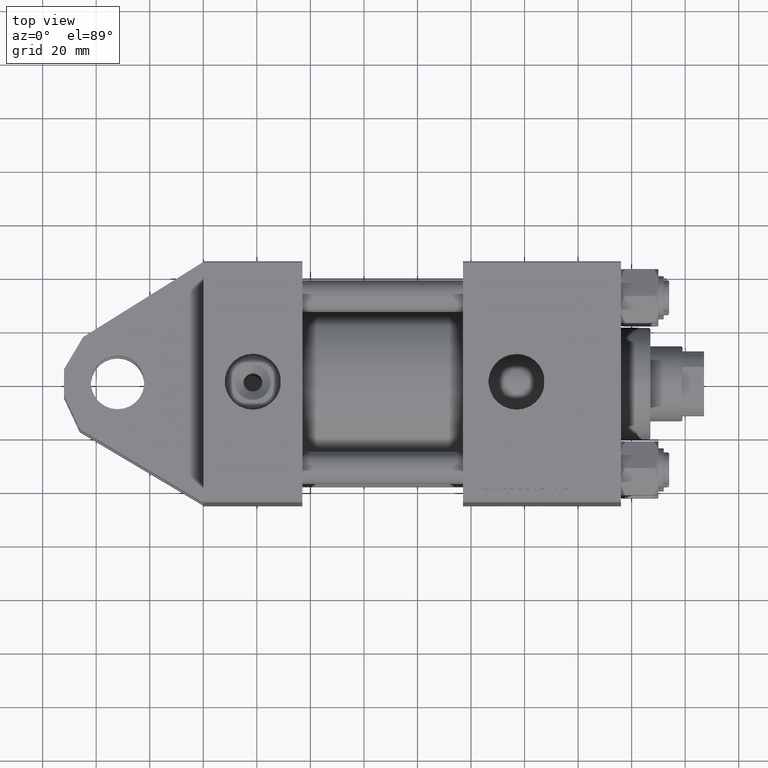
[diagram: clean part render]
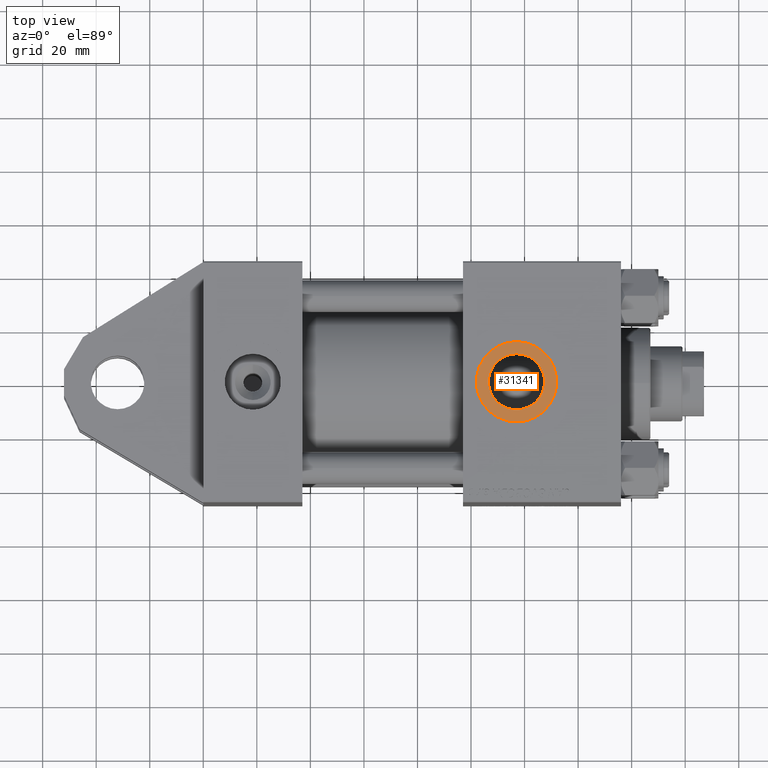
[diagram: same view with one face highlighted and labeled with its STEP entity id]
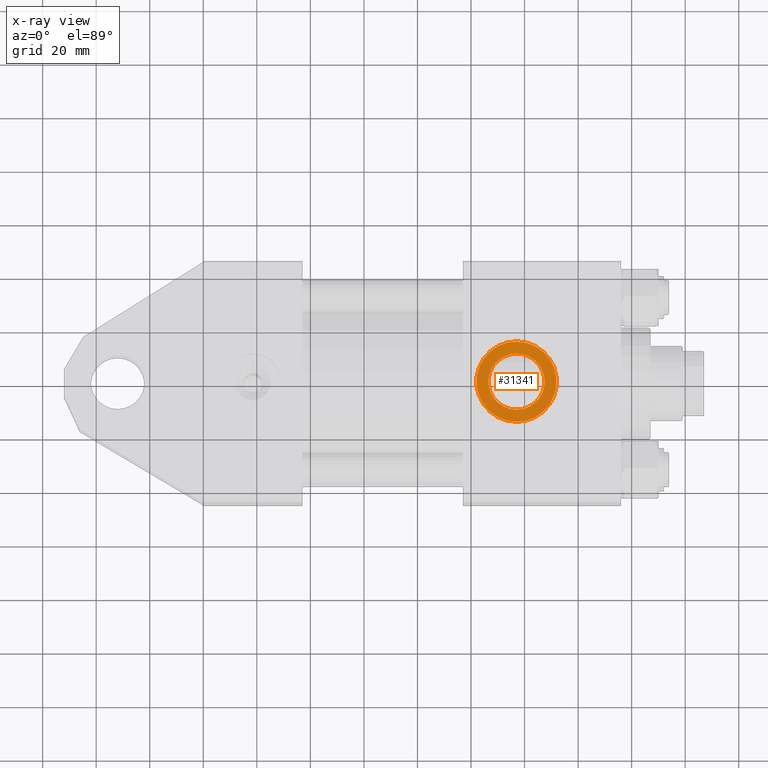
[diagram: x-ray of the same camera — body ghosted, the highlighted face saturated]
A machine part, top view. The second image highlights one B-rep face of the part: STEP entity #31341.
The next image is the same camera in x-ray: the body ghosted, the highlighted face saturated — about 0% of this face is hidden behind the body in this view.
In plain terms, the highlighted planar face has unit normal (0, -0, 1).
Its self-contained STEP definition (entity closure, byte-faithful):
#200 = ORIENTED_EDGE ( 'NONE', *, *, #15135, .T. ) ;
#1299 = FACE_BOUND ( 'NONE', #4038, .T. ) ;
#1415 = CARTESIAN_POINT ( 'NONE',  ( 117.0000000000000000, -44.79999999999999716, 15.00000000000000888 ) ) ;
#3789 = EDGE_CURVE ( 'NONE', #37404, #10490, #28231, .T. ) ;
#4038 = EDGE_LOOP ( 'NONE', ( #47691, #48189 ) ) ;
#5496 = DIRECTION ( 'NONE',  ( 0.000000000000000000, -1.000000000000000000, -8.673617379884036705E-17 ) ) ;
#8646 = PLANE ( 'NONE',  #14290 ) ;
#10490 = VERTEX_POINT ( 'NONE', #21823 ) ;
#11656 = DIRECTION ( 'NONE',  ( 0.000000000000000000, -1.000000000000000000, -8.673617379884036705E-17 ) ) ;
#12323 = CIRCLE ( 'NONE', #30748, 10.48000000000000043 ) ;
#14108 = CARTESIAN_POINT ( 'NONE',  ( 117.0000000000000000, -44.79999999999999716, -10.48000000000000398 ) ) ;
#14290 = AXIS2_PLACEMENT_3D ( 'NONE', #17289, #5496, #33253 ) ;
#15135 = EDGE_CURVE ( 'NONE', #21323, #15483, #22184, .T. ) ;
#15483 = VERTEX_POINT ( 'NONE', #22511 ) ;
#17289 = CARTESIAN_POINT ( 'NONE',  ( 117.0000000000000000, -44.79999999999999716, -3.452099717193846907E-15 ) ) ;
#18121 = DIRECTION ( 'NONE',  ( 0.000000000000000000, 0.000000000000000000, -1.000000000000000000 ) ) ;
#18637 = CARTESIAN_POINT ( 'NONE',  ( 117.0000000000000000, -44.79999999999999716, -3.452099717193846907E-15 ) ) ;
#20337 = EDGE_CURVE ( 'NONE', #10490, #37404, #12323, .T. ) ;
#21323 = VERTEX_POINT ( 'NONE', #1415 ) ;
#21823 = CARTESIAN_POINT ( 'NONE',  ( 117.0000000000000000, -44.79999999999999716, 10.47999999999999687 ) ) ;
#22184 = CIRCLE ( 'NONE', #29699, 15.00000000000001243 ) ;
#22282 = EDGE_LOOP ( 'NONE', ( #43877, #200 ) ) ;
#22511 = CARTESIAN_POINT ( 'NONE',  ( 117.0000000000000000, -44.79999999999999716, -15.00000000000001421 ) ) ;
#25715 = DIRECTION ( 'NONE',  ( 0.000000000000000000, 0.000000000000000000, -1.000000000000000000 ) ) ;
#26482 = DIRECTION ( 'NONE',  ( 0.000000000000000000, -1.000000000000000000, -8.673617379884036705E-17 ) ) ;
#27644 = DIRECTION ( 'NONE',  ( 0.000000000000000000, 0.000000000000000000, -1.000000000000000000 ) ) ;
#28231 = CIRCLE ( 'NONE', #36602, 10.48000000000000043 ) ;
#29317 = CIRCLE ( 'NONE', #41036, 15.00000000000001243 ) ;
#29699 = AXIS2_PLACEMENT_3D ( 'NONE', #18637, #26482, #18121 ) ;
#30415 = EDGE_CURVE ( 'NONE', #15483, #21323, #29317, .T. ) ;
#30748 = AXIS2_PLACEMENT_3D ( 'NONE', #51478, #11656, #27644 ) ;
#31341 = ADVANCED_FACE ( 'NONE', ( #1299, #37470 ), #8646, .T. ) ;
#33253 = DIRECTION ( 'NONE',  ( 0.000000000000000000, 8.673617379884036705E-17, -1.000000000000000000 ) ) ;
#36602 = AXIS2_PLACEMENT_3D ( 'NONE', #39435, #42846, #46495 ) ;
#37404 = VERTEX_POINT ( 'NONE', #14108 ) ;
#37470 = FACE_OUTER_BOUND ( 'NONE', #22282, .T. ) ;
#39435 = CARTESIAN_POINT ( 'NONE',  ( 117.0000000000000000, -44.79999999999999716, -3.452099717193846907E-15 ) ) ;
#41036 = AXIS2_PLACEMENT_3D ( 'NONE', #50328, #46654, #25715 ) ;
#42846 = DIRECTION ( 'NONE',  ( 0.000000000000000000, -1.000000000000000000, -8.673617379884036705E-17 ) ) ;
#43877 = ORIENTED_EDGE ( 'NONE', *, *, #30415, .T. ) ;
#46495 = DIRECTION ( 'NONE',  ( 0.000000000000000000, 0.000000000000000000, -1.000000000000000000 ) ) ;
#46654 = DIRECTION ( 'NONE',  ( 0.000000000000000000, -1.000000000000000000, -8.673617379884036705E-17 ) ) ;
#47691 = ORIENTED_EDGE ( 'NONE', *, *, #3789, .F. ) ;
#48189 = ORIENTED_EDGE ( 'NONE', *, *, #20337, .F. ) ;
#50328 = CARTESIAN_POINT ( 'NONE',  ( 117.0000000000000000, -44.79999999999999716, -3.452099717193846907E-15 ) ) ;
#51478 = CARTESIAN_POINT ( 'NONE',  ( 117.0000000000000000, -44.79999999999999716, -3.452099717193846907E-15 ) ) ;